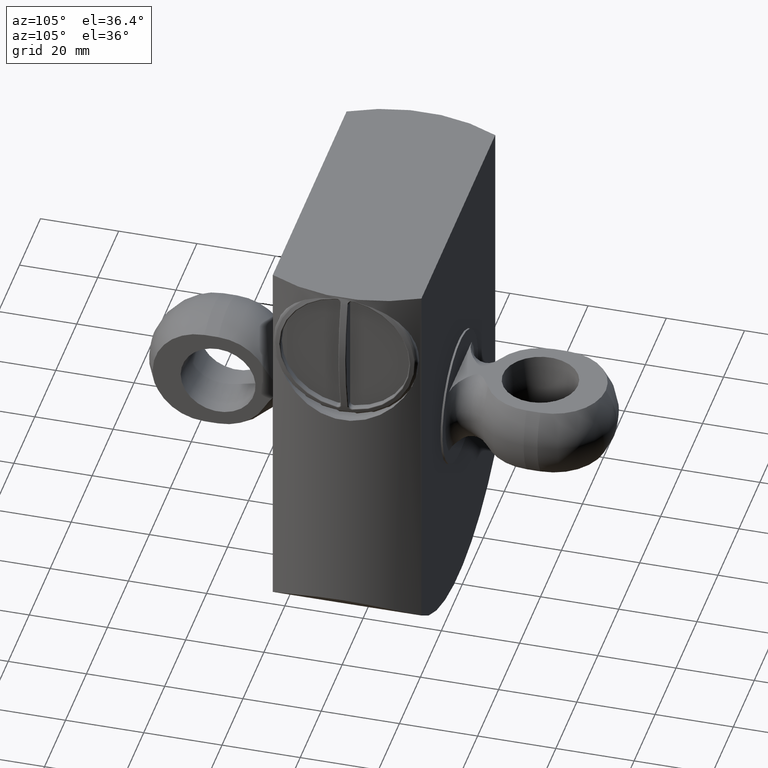
[diagram: clean part render]
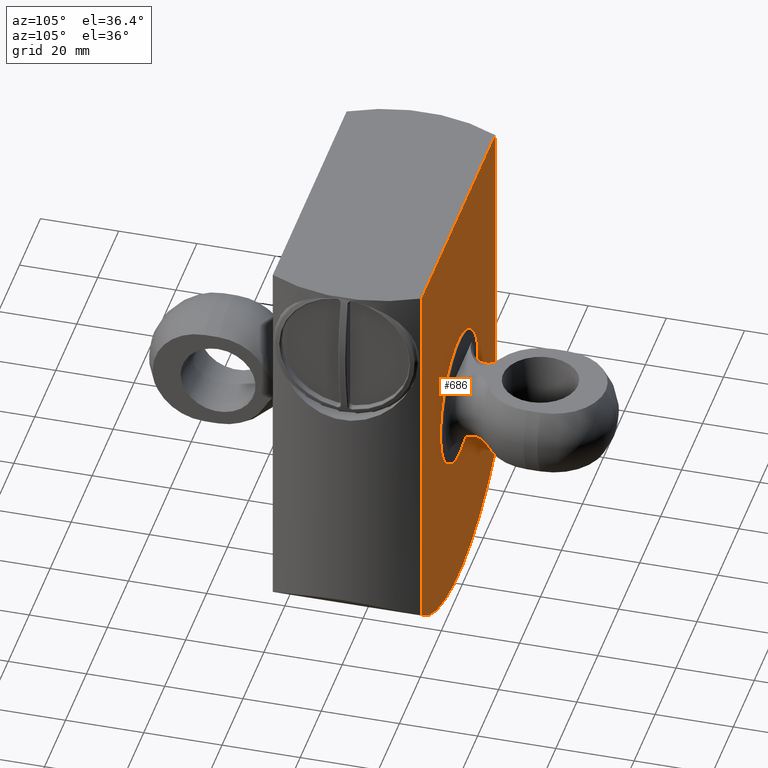
[diagram: same view with one face highlighted and labeled with its STEP entity id]
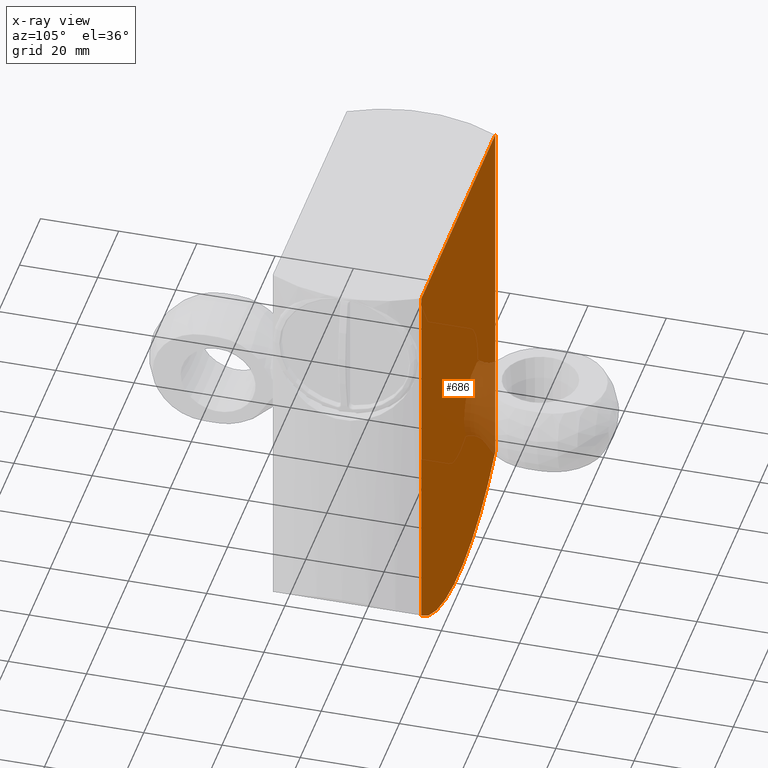
[diagram: x-ray of the same camera — body ghosted, the highlighted face saturated]
A machine part, auxiliary view. The second image highlights one B-rep face of the part: STEP entity #686.
The next image is the same camera in x-ray: the body ghosted, the highlighted face saturated — about 9% of this face is hidden behind the body in this view.
In plain terms, the highlighted planar face has unit normal (0, 1, 0).
Its self-contained STEP definition (entity closure, byte-faithful):
#62=PLANE('',#771);
#78=FACE_OUTER_BOUND('',#122,.T.);
#122=EDGE_LOOP('',(#482,#483,#484,#485));
#185=LINE('',#1203,#210);
#187=LINE('',#1212,#212);
#189=LINE('',#1233,#214);
#210=VECTOR('',#881,10.);
#212=VECTOR('',#889,10.);
#214=VECTOR('',#893,10.);
#237=CIRCLE('',#772,55.);
#298=VERTEX_POINT('',#1193);
#299=VERTEX_POINT('',#1202);
#301=VERTEX_POINT('',#1208);
#303=VERTEX_POINT('',#1211);
#368=EDGE_CURVE('',#299,#298,#185,.T.);
#372=EDGE_CURVE('',#303,#301,#187,.T.);
#376=EDGE_CURVE('',#301,#299,#189,.T.);
#377=EDGE_CURVE('',#298,#303,#237,.T.);
#482=ORIENTED_EDGE('',*,*,#372,.T.);
#483=ORIENTED_EDGE('',*,*,#376,.T.);
#484=ORIENTED_EDGE('',*,*,#368,.T.);
#485=ORIENTED_EDGE('',*,*,#377,.T.);
#686=ADVANCED_FACE('',(#78),#62,.T.);
#771=AXIS2_PLACEMENT_3D('',#1232,#891,#892);
#772=AXIS2_PLACEMENT_3D('',#1234,#894,#895);
#881=DIRECTION('',(0.,0.,-1.));
#889=DIRECTION('',(0.,0.,1.));
#891=DIRECTION('center_axis',(0.,1.,0.));
#892=DIRECTION('ref_axis',(1.,0.,0.));
#893=DIRECTION('',(1.,0.,0.));
#894=DIRECTION('center_axis',(0.,1.,0.));
#895=DIRECTION('ref_axis',(0.727272727272727,0.,-0.686348585024614));
#1193=CARTESIAN_POINT('',(35.1994318135926,19.,-42.2610932182338));
#1202=CARTESIAN_POINT('',(35.1994318135961,19.,55.));
#1203=CARTESIAN_POINT('',(35.1994318135961,19.,0.));
#1208=CARTESIAN_POINT('',(-35.1994318135961,19.,55.));
#1211=CARTESIAN_POINT('',(-35.1994318135961,19.,-42.2610932182309));
#1212=CARTESIAN_POINT('',(-35.1994318135961,19.,0.));
#1232=CARTESIAN_POINT('Origin',(-4.44089209850063E-15,19.,0.));
#1233=CARTESIAN_POINT('',(40.,19.,55.));
#1234=CARTESIAN_POINT('Origin',(0.,19.,0.));